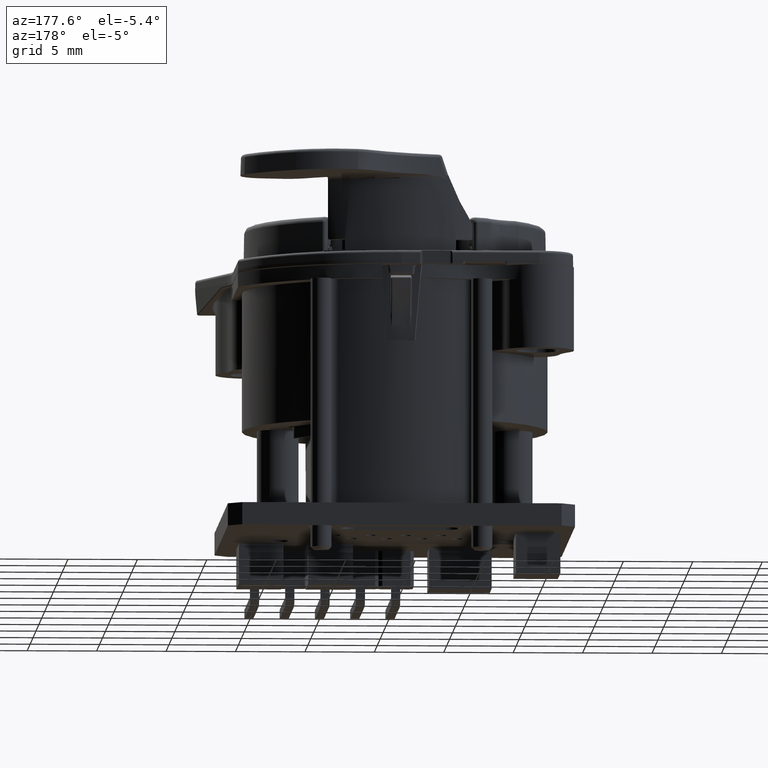
[diagram: clean part render]
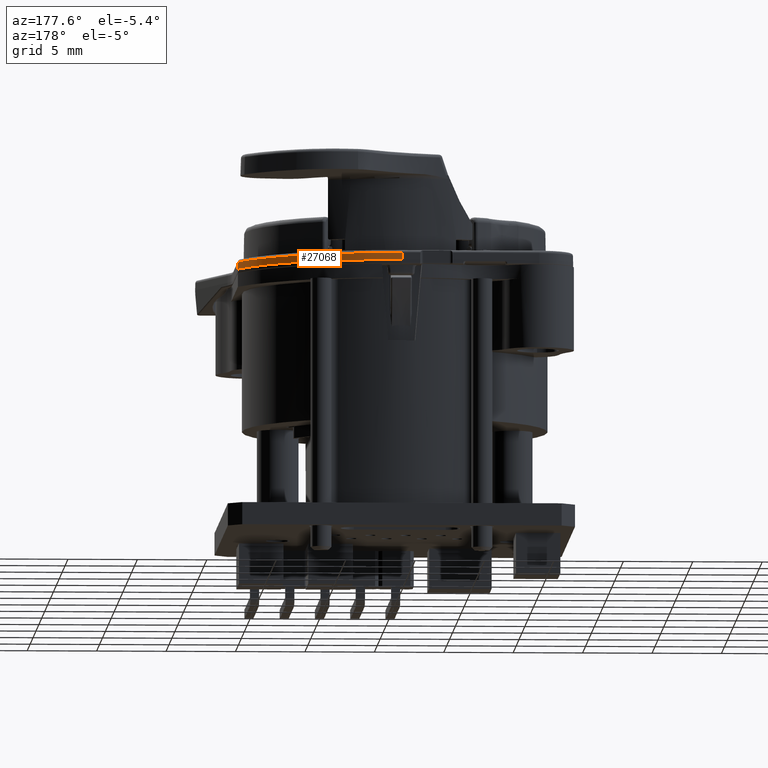
[diagram: same view with one face highlighted and labeled with its STEP entity id]
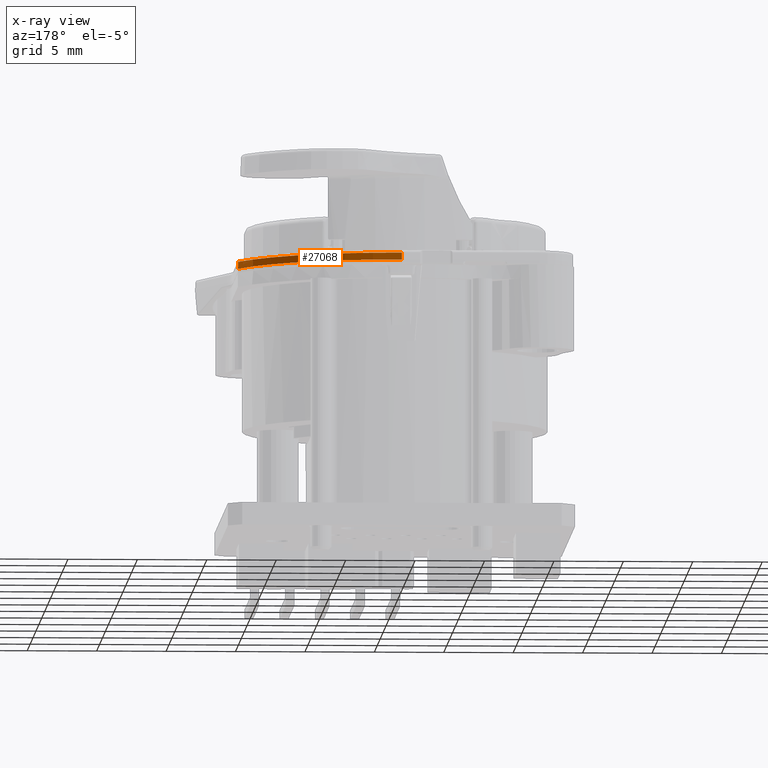
[diagram: x-ray of the same camera — body ghosted, the highlighted face saturated]
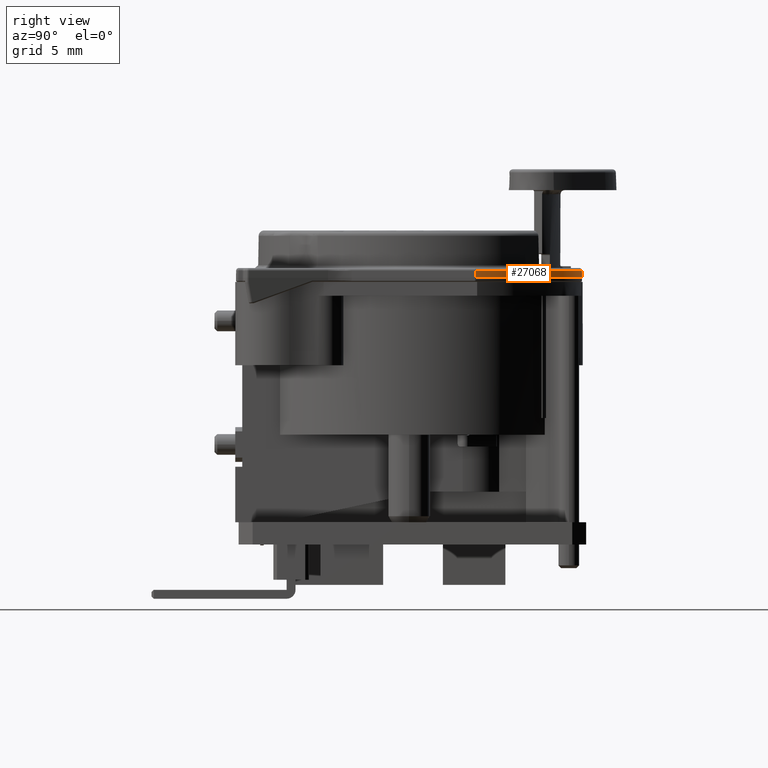
[diagram: same view with one face highlighted and labeled with its STEP entity id]
A machine part, auxiliary view. The second image highlights one B-rep face of the part: STEP entity #27068.
The next image is the same camera in x-ray: the body ghosted, the highlighted face saturated — about 0% of this face is hidden behind the body in this view.
A second angle (right view) of the same face is appended — the face is thin or edge-on in the first view.
In plain terms, the highlighted conical surface has half-angle 1 deg.
Its self-contained STEP definition (entity closure, byte-faithful):
#19904=CARTESIAN_POINT('',(1.010111586587E-3,1.244999995902E1,-3.4E0));
#19905=CARTESIAN_POINT('',(1.009992746665E-3,1.244707046678E1,
-3.232169502043E0));
#19906=CARTESIAN_POINT('',(-4.920155022414E-13,1.244414101271E1,
-3.064340016670E0));
#19907=CARTESIAN_POINT('',(-4.920155919312E-13,1.244121152047E1,
-2.896509518713E0));
#19926=CARTESIAN_POINT('',(0.E0,0.E0,-2.896509518713E0));
#19927=DIRECTION('',(0.E0,0.E0,1.E0));
#19928=DIRECTION('',(9.223934957048E-1,3.862515230797E-1,0.E0));
#19929=AXIS2_PLACEMENT_3D('',#19926,#19927,#19928);
#19931=DIRECTION('',(1.747440506999E-2,3.453089627638E-3,-9.998413480845E-1));
#19932=VECTOR('',#19931,5.035703736922E-1);
#19933=CARTESIAN_POINT('',(1.147569260407E1,4.805436906652E0,
-2.896509518713E0));
#19934=LINE('',#19933,#19932);
#19957=CARTESIAN_POINT('',(1.148449219676E1,4.807175780286E0,
-3.400000000001E0));
#20546=CARTESIAN_POINT('',(0.E0,0.E0,-3.4E0));
#20547=DIRECTION('',(0.E0,0.E0,1.E0));
#20548=DIRECTION('',(9.224491724305E-1,3.861185365692E-1,0.E0));
#20549=AXIS2_PLACEMENT_3D('',#20546,#20547,#20548);
#21952=VERTEX_POINT('',#19957);
#21956=CARTESIAN_POINT('',(1.010111586658E-3,1.244999995902E1,-3.4E0));
#21957=VERTEX_POINT('',#21956);
#22007=CARTESIAN_POINT('',(1.147569260407E1,4.805436906654E0,
-2.896509518713E0));
#22008=VERTEX_POINT('',#22007);
#22009=CARTESIAN_POINT('',(0.E0,1.244121154096E1,-2.896509518713E0));
#22010=VERTEX_POINT('',#22009);
#27054=CARTESIAN_POINT('',(0.E0,0.E0,-3.148254759178E0));
#27055=DIRECTION('',(0.E0,0.E0,-1.E0));
#27056=DIRECTION('',(-1.E0,0.E0,0.E0));
#27057=AXIS2_PLACEMENT_3D('',#27054,#27055,#27056);
#27058=CONICAL_SURFACE('',#27057,1.244560577048E1,1.E0);
#27060=ORIENTED_EDGE('',*,*,#27059,.T.);
#27061=ORIENTED_EDGE('',*,*,#27036,.F.);
#27063=ORIENTED_EDGE('',*,*,#27062,.F.);
#27065=ORIENTED_EDGE('',*,*,#27064,.F.);
#27066=EDGE_LOOP('',(#27060,#27061,#27063,#27065));
#27067=FACE_OUTER_BOUND('',#27066,.F.);
#27068=ADVANCED_FACE('',(#27067),#27058,.T.);
#19908=B_SPLINE_CURVE_WITH_KNOTS('',3,(#19904,#19905,#19906,#19907),
.UNSPECIFIED.,.F.,.F.,(4,4),(0.E0,1.E0),.UNSPECIFIED.);
#19930=CIRCLE('',#19929,1.244121154096E1);
#20550=CIRCLE('',#20549,1.245E1);
#27036=EDGE_CURVE('',#21957,#22010,#19908,.T.);
#27059=EDGE_CURVE('',#22008,#22010,#19930,.T.);
#27062=EDGE_CURVE('',#21952,#21957,#20550,.T.);
#27064=EDGE_CURVE('',#22008,#21952,#19934,.T.);